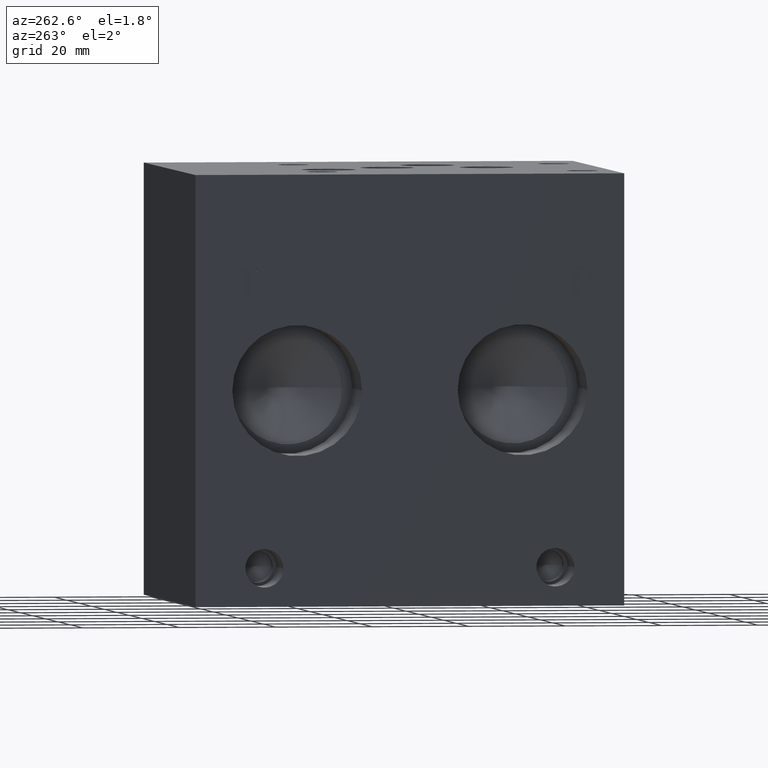
[diagram: clean part render]
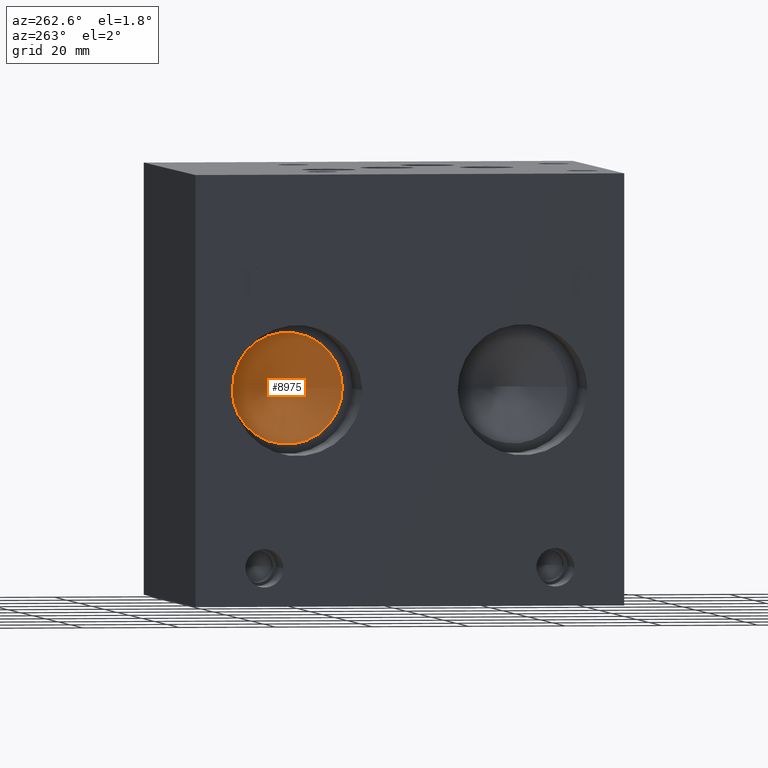
[diagram: same view with one face highlighted and labeled with its STEP entity id]
A machine part, auxiliary view. The second image highlights one B-rep face of the part: STEP entity #8975.
In plain terms, the highlighted conical surface has half-angle 60 deg.
Its self-contained STEP definition (entity closure, byte-faithful):
#46=CONICAL_SURFACE('',#9351,5.7531,1.0471975511966);
#84=CIRCLE('',#9352,11.5062);
#85=CIRCLE('',#9353,11.5062);
#931=FACE_OUTER_BOUND('',#1440,.T.);
#1440=EDGE_LOOP('',(#7746,#7747,#7748,#7749));
#2363=LINE('',#15079,#3246);
#3246=VECTOR('',#10936,5.7531);
#4270=VERTEX_POINT('',#15075);
#4271=VERTEX_POINT('',#15076);
#4272=VERTEX_POINT('',#15078);
#5471=EDGE_CURVE('',#4270,#4271,#84,.T.);
#5472=EDGE_CURVE('',#4271,#4272,#2363,.T.);
#5473=EDGE_CURVE('',#4271,#4270,#85,.T.);
#7746=ORIENTED_EDGE('',*,*,#5471,.T.);
#7747=ORIENTED_EDGE('',*,*,#5472,.T.);
#7748=ORIENTED_EDGE('',*,*,#5472,.F.);
#7749=ORIENTED_EDGE('',*,*,#5473,.T.);
#8975=ADVANCED_FACE('',(#931),#46,.F.);
#9351=AXIS2_PLACEMENT_3D('',#15074,#10932,#10933);
#9352=AXIS2_PLACEMENT_3D('',#15077,#10934,#10935);
#9353=AXIS2_PLACEMENT_3D('',#15080,#10937,#10938);
#10932=DIRECTION('center_axis',(-1.,0.,0.));
#10933=DIRECTION('ref_axis',(0.,1.,0.));
#10934=DIRECTION('center_axis',(-1.,0.,0.));
#10935=DIRECTION('ref_axis',(0.,1.,0.));
#10936=DIRECTION('',(0.5,0.866025403784439,-1.06057523872491E-16));
#10937=DIRECTION('center_axis',(-1.,0.,0.));
#10938=DIRECTION('ref_axis',(0.,1.,0.));
#15074=CARTESIAN_POINT('Origin',(19.8354638336748,67.818,44.45));
#15075=CARTESIAN_POINT('',(16.51391,79.3242,44.45));
#15076=CARTESIAN_POINT('',(16.51391,56.3118,44.45));
#15077=CARTESIAN_POINT('Origin',(16.51391,67.818,44.45));
#15078=CARTESIAN_POINT('',(23.1570176673497,67.818,44.45));
#15079=CARTESIAN_POINT('',(19.8354638336748,62.0649,44.45));
#15080=CARTESIAN_POINT('Origin',(16.51391,67.818,44.45));